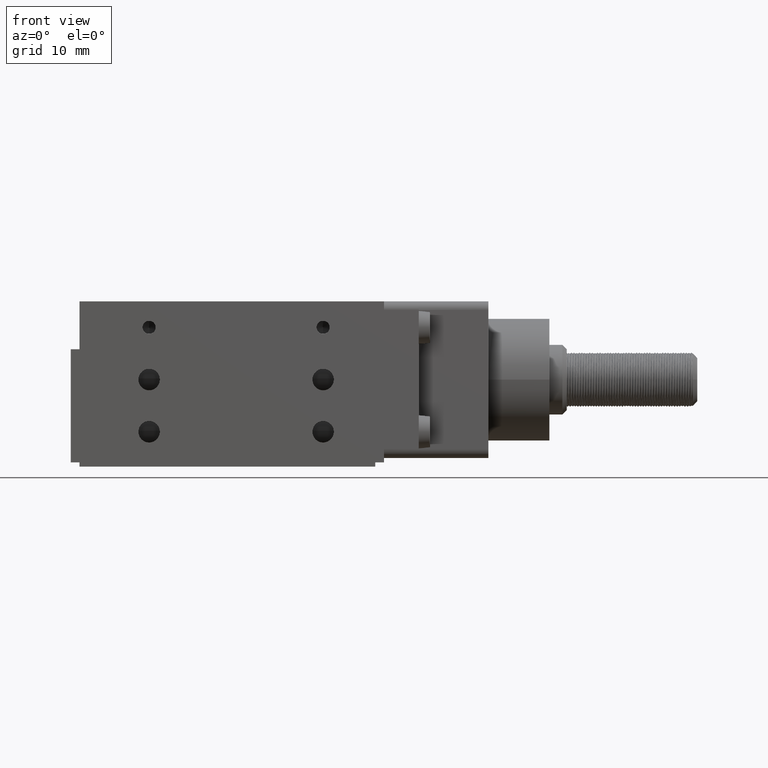
[diagram: clean part render]
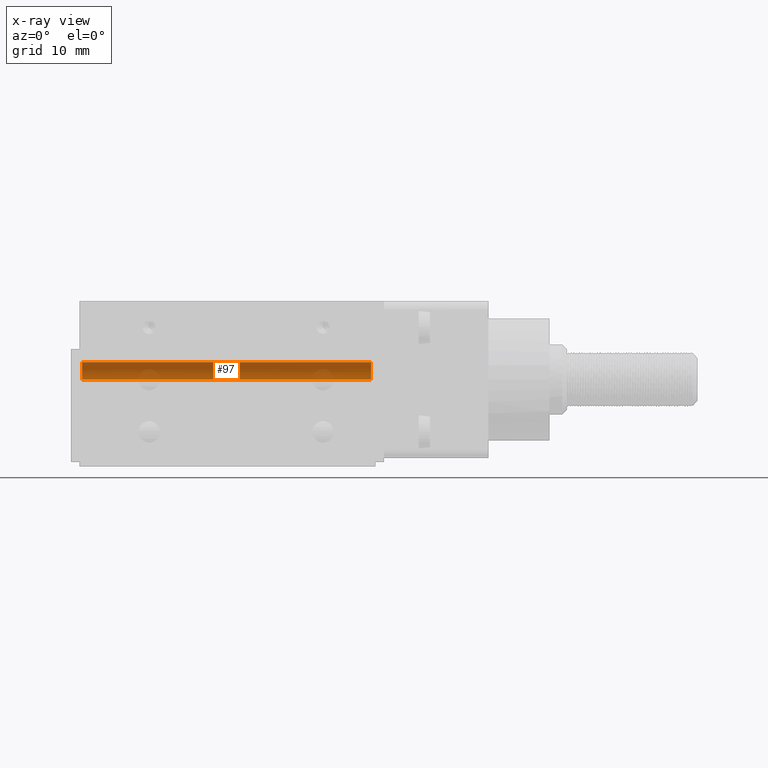
[diagram: x-ray — body ghosted, one internal face saturated and labeled with its STEP entity id]
A machine part, front view, then the same camera in x-ray: the body is ghosted and one INTERNAL B-rep face — a face not visible from any outside direction — is saturated and labeled: STEP entity #97.
In plain terms, the highlighted cylindrical surface (edge-blend (fillet) strip) has radius 2 mm, axis along (-1, 0, 0).
Its self-contained STEP definition (entity closure, byte-faithful):
#97=ADVANCED_FACE('',(#683),#8113,.T.);
#683=FACE_OUTER_BOUND('',#1204,.T.);
#1204=EDGE_LOOP('',(#2107,#2108,#2109,#2110,#2111,#2112));
#2107=ORIENTED_EDGE('',*,*,#4668,.F.);
#2108=ORIENTED_EDGE('',*,*,#4670,.F.);
#2109=ORIENTED_EDGE('',*,*,#4672,.F.);
#2110=ORIENTED_EDGE('',*,*,#4669,.F.);
#2111=ORIENTED_EDGE('',*,*,#4666,.F.);
#2112=ORIENTED_EDGE('',*,*,#4664,.F.);
#4664=EDGE_CURVE('',#7435,#7434,#5940,.T.);
#4666=EDGE_CURVE('',#7434,#7436,#5942,.T.);
#4668=EDGE_CURVE('',#7438,#7435,#6476,.T.);
#4669=EDGE_CURVE('',#7436,#7439,#6477,.T.);
#4670=EDGE_CURVE('',#7440,#7438,#5944,.T.);
#4672=EDGE_CURVE('',#7439,#7440,#5946,.T.);
#5940=(
BOUNDED_CURVE()
B_SPLINE_CURVE(2,(#11672,#11673,#11674),.UNSPECIFIED.,.F.,.F.)
B_SPLINE_CURVE_WITH_KNOTS((3,3),(3.42550263773669,5.34070751110263),
 .UNSPECIFIED.)
CURVE()
GEOMETRIC_REPRESENTATION_ITEM()
RATIONAL_B_SPLINE_CURVE((1.,0.845499962112464,1.))
REPRESENTATION_ITEM('')
);
#5942=(
BOUNDED_CURVE()
B_SPLINE_CURVE(2,(#11680,#11681,#11682),.UNSPECIFIED.,.F.,.F.)
B_SPLINE_CURVE_WITH_KNOTS((3,3),(5.34070751110263,6.09585639328793),
 .UNSPECIFIED.)
CURVE()
GEOMETRIC_REPRESENTATION_ITEM()
RATIONAL_B_SPLINE_CURVE((1.,0.975436440145248,1.))
REPRESENTATION_ITEM('')
);
#5944=(
BOUNDED_CURVE()
B_SPLINE_CURVE(2,(#11692,#11693,#11694),.UNSPECIFIED.,.F.,.F.)
B_SPLINE_CURVE_WITH_KNOTS((3,3),(0.,1.91520487336605),.UNSPECIFIED.)
CURVE()
GEOMETRIC_REPRESENTATION_ITEM()
RATIONAL_B_SPLINE_CURVE((1.,0.84549996211251,1.))
REPRESENTATION_ITEM('')
);
#5946=(
BOUNDED_CURVE()
B_SPLINE_CURVE(2,(#11698,#11699,#11700),.UNSPECIFIED.,.F.,.F.)
B_SPLINE_CURVE_WITH_KNOTS((3,3),(9.92626614001995,10.6814150222053),
 .UNSPECIFIED.)
CURVE()
GEOMETRIC_REPRESENTATION_ITEM()
RATIONAL_B_SPLINE_CURVE((1.,0.975436440145297,1.))
REPRESENTATION_ITEM('')
);
#6476=B_SPLINE_CURVE_WITH_KNOTS('',1,(#11688,#11689),.UNSPECIFIED.,.F.,
 .F.,(2,2),(0.,33.2),.UNSPECIFIED.);
#6477=B_SPLINE_CURVE_WITH_KNOTS('',1,(#11690,#11691),.UNSPECIFIED.,.F.,
 .F.,(2,2),(0.,33.2),.UNSPECIFIED.);
#7434=VERTEX_POINT('',#10795);
#7435=VERTEX_POINT('',#10796);
#7436=VERTEX_POINT('',#10797);
#7438=VERTEX_POINT('',#10799);
#7439=VERTEX_POINT('',#10800);
#7440=VERTEX_POINT('',#10801);
#8113=CYLINDRICAL_SURFACE('',#8667,2.00000000000004);
#8667=AXIS2_PLACEMENT_3D('',#10170,#9068,$);
#9068=DIRECTION('',(-1.,1.14947898462143E-15,1.82525538453557E-14));
#10170=CARTESIAN_POINT('',(-18.0999991892415,-6.70799999446808,10.0000455395511));
#10795=CARTESIAN_POINT('',(-34.6999991892415,-4.90209499941478,10.8595262832806));
#10796=CARTESIAN_POINT('',(-34.6999991892415,-6.70799999446807,12.0000455395509));
#10797=CARTESIAN_POINT('',(-34.6999991892415,-4.70799999446827,10.0000455395514));
#10799=CARTESIAN_POINT('',(-1.49999918924145,-6.70799999446817,12.0000455395508));
#10800=CARTESIAN_POINT('',(-1.49999918924155,-4.70799999446827,10.0000455395508));
#10801=CARTESIAN_POINT('',(-1.49999918924152,-4.90209499941486,10.85952628328));
#11672=CARTESIAN_POINT('',(-34.6999991892415,-6.70799999446808,12.0000455395509));
#11673=CARTESIAN_POINT('',(-34.6999991892415,-5.44490004248304,12.0000455395513));
#11674=CARTESIAN_POINT('',(-34.6999991892415,-4.90209499941478,10.8595262832806));
#11680=CARTESIAN_POINT('',(-34.6999991892415,-4.90209499941478,10.8595262832806));
#11681=CARTESIAN_POINT('',(-34.6999991892415,-4.7079999944681,10.4517019759818));
#11682=CARTESIAN_POINT('',(-34.6999991892415,-4.70799999446827,10.0000455395514));
#11688=CARTESIAN_POINT('',(-1.49999918924145,-6.70799999446817,12.0000455395508));
#11689=CARTESIAN_POINT('',(-34.6999991892415,-6.70799999446807,12.0000455395509));
#11690=CARTESIAN_POINT('',(-34.6999991892415,-4.70799999446827,10.0000455395514));
#11691=CARTESIAN_POINT('',(-1.49999918924155,-4.70799999446827,10.0000455395508));
#11692=CARTESIAN_POINT('',(-1.49999918924152,-4.90209499941486,10.85952628328));
#11693=CARTESIAN_POINT('',(-1.49999918924149,-5.44490004248306,12.0000455395509));
#11694=CARTESIAN_POINT('',(-1.49999918924145,-6.70799999446817,12.0000455395508));
#11698=CARTESIAN_POINT('',(-1.49999918924155,-4.70799999446827,10.0000455395508));
#11699=CARTESIAN_POINT('',(-1.49999918924154,-4.70799999446823,10.4517019759812));
#11700=CARTESIAN_POINT('',(-1.49999918924153,-4.90209499941485,10.85952628328));